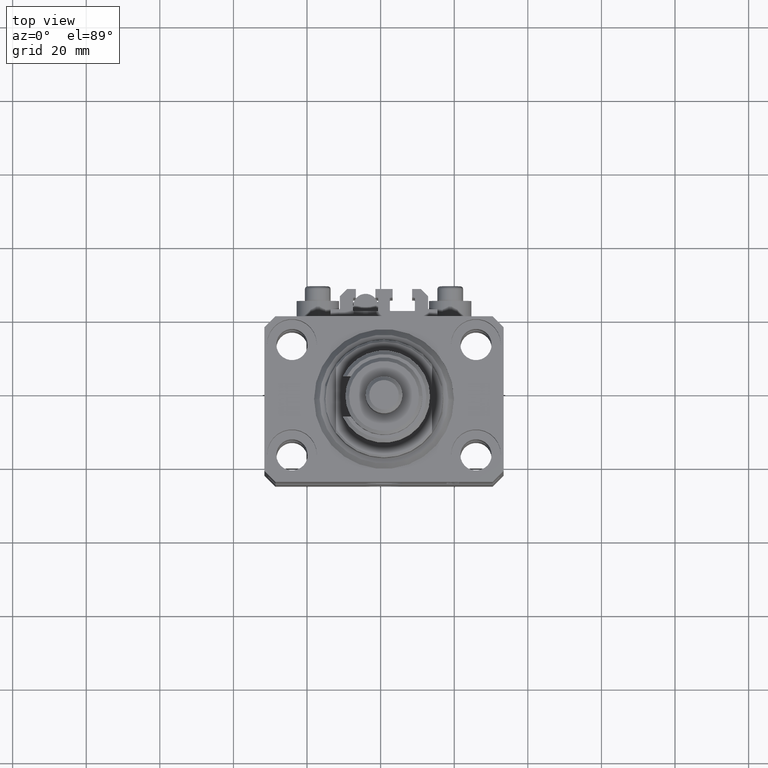
[diagram: clean part render]
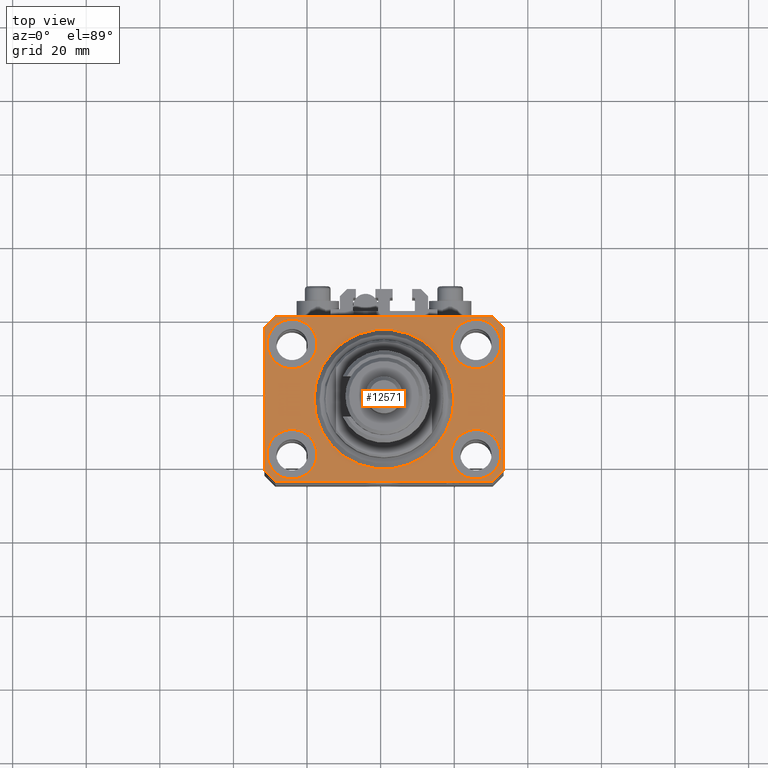
[diagram: same view with one face highlighted and labeled with its STEP entity id]
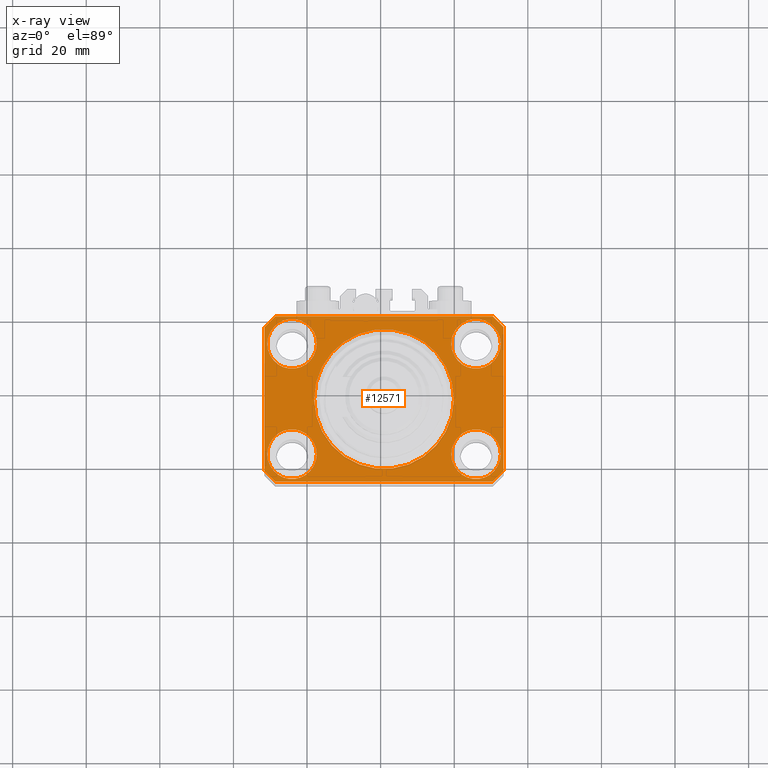
[diagram: x-ray of the same camera — body ghosted, the highlighted face saturated]
A machine part, top view. The second image highlights one B-rep face of the part: STEP entity #12571.
The next image is the same camera in x-ray: the body ghosted, the highlighted face saturated — about 0% of this face is hidden behind the body in this view.
In plain terms, the highlighted planar face has unit normal (0, 0, 1).
Its self-contained STEP definition (entity closure, byte-faithful):
#194 = CIRCLE ( 'NONE', #35042, 6.750000000041541881 ) ;
#569 = EDGE_CURVE ( 'NONE', #16544, #2751, #38163, .T. ) ;
#1836 = DIRECTION ( 'NONE',  ( 0.000000000000000000, 0.000000000000000000, 1.000000000000000000 ) ) ;
#2275 = EDGE_CURVE ( 'NONE', #26598, #32212, #33383, .T. ) ;
#2467 = CARTESIAN_POINT ( 'NONE',  ( 0.000000000000000000, 0.000000000000000000, 0.000000000000000000 ) ) ;
#2522 = ORIENTED_EDGE ( 'NONE', *, *, #25616, .F. ) ;
#2751 = VERTEX_POINT ( 'NONE', #49647 ) ;
#2944 = FACE_BOUND ( 'NONE', #36284, .T. ) ;
#3092 = CARTESIAN_POINT ( 'NONE',  ( -32.49999999999650413, -19.49999999999949907, 0.000000000000000000 ) ) ;
#3091 = CIRCLE ( 'NONE', #43691, 6.749999999958452790 ) ;
#3118 = EDGE_CURVE ( 'NONE', #32307, #19459, #24037, .T. ) ;
#3205 = FACE_BOUND ( 'NONE', #35027, .T. ) ;
#3467 = CARTESIAN_POINT ( 'NONE',  ( -25.00000000000000355, -15.00000000000000000, 0.000000000000000000 ) ) ;
#4167 = EDGE_CURVE ( 'NONE', #32212, #18233, #38654, .T. ) ;
#4303 = DIRECTION ( 'NONE',  ( 0.7071067811865474617, -0.7071067811865474617, 0.000000000000000000 ) ) ;
#4331 = CIRCLE ( 'NONE', #8486, 6.749999999958452790 ) ;
#4628 = ORIENTED_EDGE ( 'NONE', *, *, #39814, .F. ) ;
#4790 = ORIENTED_EDGE ( 'NONE', *, *, #569, .F. ) ;
#4952 = CARTESIAN_POINT ( 'NONE',  ( 18.25000000002253842, -15.00000000000000000, 0.000000000000000000 ) ) ;
#6032 = CARTESIAN_POINT ( 'NONE',  ( 32.49999999999651124, -19.49999999999949196, 0.000000000000000000 ) ) ;
#6315 = DIRECTION ( 'NONE',  ( 1.000000000000000000, 0.000000000000000000, 0.000000000000000000 ) ) ;
#6450 = DIRECTION ( 'NONE',  ( 0.000000000000000000, 0.000000000000000000, 1.000000000000000000 ) ) ;
#6818 = LINE ( 'NONE', #33811, #38774 ) ;
#7212 = DIRECTION ( 'NONE',  ( 1.000000000000000000, 0.000000000000000000, 0.000000000000000000 ) ) ;
#7637 = VECTOR ( 'NONE', #29090, 1000.000000000000000 ) ;
#7990 = AXIS2_PLACEMENT_3D ( 'NONE', #33427, #13739, #14256 ) ;
#8109 = EDGE_CURVE ( 'NONE', #49520, #12028, #13534, .T. ) ;
#8311 = AXIS2_PLACEMENT_3D ( 'NONE', #28086, #1836, #21069 ) ;
#8471 = CARTESIAN_POINT ( 'NONE',  ( 29.49999999999650413, -22.49999999999949196, 0.000000000000000000 ) ) ;
#8486 = AXIS2_PLACEMENT_3D ( 'NONE', #20178, #39386, #7212 ) ;
#8759 = DIRECTION ( 'NONE',  ( 0.000000000000000000, -1.000000000000000000, 0.000000000000000000 ) ) ;
#9262 = VERTEX_POINT ( 'NONE', #44660 ) ;
#9370 = AXIS2_PLACEMENT_3D ( 'NONE', #26039, #10742, #6315 ) ;
#9467 = ORIENTED_EDGE ( 'NONE', *, *, #3118, .F. ) ;
#10308 = ORIENTED_EDGE ( 'NONE', *, *, #4167, .T. ) ;
#10440 = AXIS2_PLACEMENT_3D ( 'NONE', #2467, #42172, #30240 ) ;
#10523 = VERTEX_POINT ( 'NONE', #48299 ) ;
#10742 = DIRECTION ( 'NONE',  ( 0.000000000000000000, 0.000000000000000000, 1.000000000000000000 ) ) ;
#11256 = DIRECTION ( 'NONE',  ( 1.000000000000000000, 0.000000000000000000, -0.000000000000000000 ) ) ;
#11292 = EDGE_LOOP ( 'NONE', ( #32142, #17770 ) ) ;
#11808 = DIRECTION ( 'NONE',  ( 0.000000000000000000, 0.000000000000000000, 1.000000000000000000 ) ) ;
#12028 = VERTEX_POINT ( 'NONE', #18914 ) ;
#12064 = CARTESIAN_POINT ( 'NONE',  ( -25.00000000000000355, -15.00000000000000000, 0.000000000000000000 ) ) ;
#12124 = ORIENTED_EDGE ( 'NONE', *, *, #40092, .T. ) ;
#12525 = VERTEX_POINT ( 'NONE', #46268 ) ;
#12571 = ADVANCED_FACE ( 'NONE', ( #35382, #3205, #46782, #38505, #2944, #23191 ), #43161, .T. ) ;
#12590 = EDGE_CURVE ( 'NONE', #12525, #10523, #194, .T. ) ;
#13534 = LINE ( 'NONE', #24685, #7637 ) ;
#13739 = DIRECTION ( 'NONE',  ( 0.000000000000000000, 0.000000000000000000, 1.000000000000000000 ) ) ;
#14256 = DIRECTION ( 'NONE',  ( 1.000000000000000000, 0.000000000000000000, 0.000000000000000000 ) ) ;
#14307 = DIRECTION ( 'NONE',  ( -0.7071067811865352493, 0.7071067811865597852, 0.000000000000000000 ) ) ;
#14532 = ORIENTED_EDGE ( 'NONE', *, *, #39940, .T. ) ;
#15070 = DIRECTION ( 'NONE',  ( -0.7071067811865474617, -0.7071067811865474617, 0.000000000000000000 ) ) ;
#15197 = CARTESIAN_POINT ( 'NONE',  ( 24.99999999999999645, 15.00000000000000888, 0.000000000000000000 ) ) ;
#15430 = AXIS2_PLACEMENT_3D ( 'NONE', #34124, #42681, #49673 ) ;
#15989 = CARTESIAN_POINT ( 'NONE',  ( -19.00000000000000000, 2.326828918379970970E-15, 0.000000000000000000 ) ) ;
#16544 = VERTEX_POINT ( 'NONE', #15989 ) ;
#16716 = ORIENTED_EDGE ( 'NONE', *, *, #46035, .T. ) ;
#17030 = VERTEX_POINT ( 'NONE', #27020 ) ;
#17770 = ORIENTED_EDGE ( 'NONE', *, *, #20245, .F. ) ;
#17987 = DIRECTION ( 'NONE',  ( 1.334402673828349134E-14, 1.000000000000000000, 0.000000000000000000 ) ) ;
#18233 = VERTEX_POINT ( 'NONE', #38127 ) ;
#18796 = CARTESIAN_POINT ( 'NONE',  ( 0.000000000000000000, 0.000000000000000000, 0.000000000000000000 ) ) ;
#18914 = CARTESIAN_POINT ( 'NONE',  ( 32.49999999999651124, -19.49999999999949196, 0.000000000000000000 ) ) ;
#19459 = VERTEX_POINT ( 'NONE', #24099 ) ;
#19597 = DIRECTION ( 'NONE',  ( 1.000000000000000000, 0.000000000000000000, 0.000000000000000000 ) ) ;
#20178 = CARTESIAN_POINT ( 'NONE',  ( 24.99999999999999645, 15.00000000000000888, 0.000000000000000000 ) ) ;
#20245 = EDGE_CURVE ( 'NONE', #47112, #9262, #30371, .T. ) ;
#20288 = ORIENTED_EDGE ( 'NONE', *, *, #8109, .T. ) ;
#20327 = EDGE_LOOP ( 'NONE', ( #33014, #34455 ) ) ;
#21069 = DIRECTION ( 'NONE',  ( 1.000000000000000000, 0.000000000000000000, 0.000000000000000000 ) ) ;
#21294 = CARTESIAN_POINT ( 'NONE',  ( 29.49999999999707967, 22.49999999999951328, 0.000000000000000000 ) ) ;
#21871 = LINE ( 'NONE', #6032, #40515 ) ;
#22625 = AXIS2_PLACEMENT_3D ( 'NONE', #18796, #26564, #11256 ) ;
#23191 = FACE_OUTER_BOUND ( 'NONE', #33460, .T. ) ;
#23593 = ORIENTED_EDGE ( 'NONE', *, *, #28852, .F. ) ;
#24037 = CIRCLE ( 'NONE', #43121, 6.749999999977465137 ) ;
#24099 = CARTESIAN_POINT ( 'NONE',  ( 31.74999999997746869, -15.00000000000000000, 0.000000000000000000 ) ) ;
#24159 = EDGE_LOOP ( 'NONE', ( #23593, #2522 ) ) ;
#24685 = CARTESIAN_POINT ( 'NONE',  ( 29.49999999999650413, -22.49999999999949196, 0.000000000000000000 ) ) ;
#25616 = EDGE_CURVE ( 'NONE', #17030, #29189, #3091, .T. ) ;
#26039 = CARTESIAN_POINT ( 'NONE',  ( -25.00000000000000355, 15.00000000000000000, 0.000000000000000000 ) ) ;
#26128 = CIRCLE ( 'NONE', #44393, 6.750000000041541881 ) ;
#26279 = VECTOR ( 'NONE', #49682, 1000.000000000000000 ) ;
#26564 = DIRECTION ( 'NONE',  ( 0.000000000000000000, 0.000000000000000000, 1.000000000000000000 ) ) ;
#26598 = VERTEX_POINT ( 'NONE', #40081 ) ;
#26632 = EDGE_CURVE ( 'NONE', #18233, #49520, #6818, .T. ) ;
#26957 = DIRECTION ( 'NONE',  ( 1.000000000000000000, 0.000000000000000000, 0.000000000000000000 ) ) ;
#27020 = CARTESIAN_POINT ( 'NONE',  ( 18.25000000004154543, 15.00000000000000888, 0.000000000000000000 ) ) ;
#27822 = VECTOR ( 'NONE', #14307, 1000.000000000000000 ) ;
#28086 = CARTESIAN_POINT ( 'NONE',  ( 0.000000000000000000, 0.000000000000000000, 0.000000000000000000 ) ) ;
#28445 = CIRCLE ( 'NONE', #9370, 6.750000000022533087 ) ;
#28852 = EDGE_CURVE ( 'NONE', #29189, #17030, #4331, .T. ) ;
#29090 = DIRECTION ( 'NONE',  ( 0.7071067811865483499, 0.7071067811865466846, 0.000000000000000000 ) ) ;
#29189 = VERTEX_POINT ( 'NONE', #42187 ) ;
#29408 = CARTESIAN_POINT ( 'NONE',  ( 32.49999999999702993, 19.49999999999945999, 0.000000000000000000 ) ) ;
#29730 = CARTESIAN_POINT ( 'NONE',  ( 29.49999999999707967, 22.49999999999951328, 0.000000000000000000 ) ) ;
#30181 = EDGE_CURVE ( 'NONE', #9262, #47112, #28445, .T. ) ;
#30240 = DIRECTION ( 'NONE',  ( 1.000000000000000000, 0.000000000000000000, 0.000000000000000000 ) ) ;
#30371 = CIRCLE ( 'NONE', #7990, 6.750000000022533087 ) ;
#30724 = DIRECTION ( 'NONE',  ( 0.000000000000000000, 0.000000000000000000, 1.000000000000000000 ) ) ;
#31023 = DIRECTION ( 'NONE',  ( 0.000000000000000000, 0.000000000000000000, 1.000000000000000000 ) ) ;
#31116 = CARTESIAN_POINT ( 'NONE',  ( 25.00000000000000355, -15.00000000000000000, 0.000000000000000000 ) ) ;
#32142 = ORIENTED_EDGE ( 'NONE', *, *, #30181, .F. ) ;
#32212 = VERTEX_POINT ( 'NONE', #39234 ) ;
#32289 = LINE ( 'NONE', #37190, #27822 ) ;
#32307 = VERTEX_POINT ( 'NONE', #4952 ) ;
#33014 = ORIENTED_EDGE ( 'NONE', *, *, #39841, .F. ) ;
#33383 = LINE ( 'NONE', #40415, #35462 ) ;
#33427 = CARTESIAN_POINT ( 'NONE',  ( -25.00000000000000355, 15.00000000000000000, 0.000000000000000000 ) ) ;
#33460 = EDGE_LOOP ( 'NONE', ( #46862, #12124, #38276, #10308, #49981, #20288, #16716, #14532 ) ) ;
#33542 = ORIENTED_EDGE ( 'NONE', *, *, #40615, .F. ) ;
#33811 = CARTESIAN_POINT ( 'NONE',  ( -29.49999999999650413, -22.49999999999949907, 0.000000000000000000 ) ) ;
#34124 = CARTESIAN_POINT ( 'NONE',  ( 25.00000000000000355, -15.00000000000000000, 0.000000000000000000 ) ) ;
#34455 = ORIENTED_EDGE ( 'NONE', *, *, #12590, .F. ) ;
#34777 = LINE ( 'NONE', #50577, #43588 ) ;
#35027 = EDGE_LOOP ( 'NONE', ( #4628, #9467 ) ) ;
#35042 = AXIS2_PLACEMENT_3D ( 'NONE', #3467, #30724, #50923 ) ;
#35382 = FACE_BOUND ( 'NONE', #20327, .T. ) ;
#35462 = VECTOR ( 'NONE', #8759, 1000.000000000000000 ) ;
#35711 = VECTOR ( 'NONE', #4303, 1000.000000000000114 ) ;
#36284 = EDGE_LOOP ( 'NONE', ( #33542, #4790 ) ) ;
#37190 = CARTESIAN_POINT ( 'NONE',  ( 32.49999999999702993, 19.49999999999945999, 0.000000000000000000 ) ) ;
#37259 = VERTEX_POINT ( 'NONE', #37924 ) ;
#37924 = CARTESIAN_POINT ( 'NONE',  ( -29.49999999999650413, 22.49999999999949907, 0.000000000000000000 ) ) ;
#38127 = CARTESIAN_POINT ( 'NONE',  ( -29.49999999999650413, -22.49999999999949907, 0.000000000000000000 ) ) ;
#38163 = CIRCLE ( 'NONE', #8311, 19.00000000000000000 ) ;
#38276 = ORIENTED_EDGE ( 'NONE', *, *, #2275, .T. ) ;
#38478 = CARTESIAN_POINT ( 'NONE',  ( -31.75000000002253842, 15.00000000000000000, 0.000000000000000000 ) ) ;
#38505 = FACE_BOUND ( 'NONE', #11292, .T. ) ;
#38654 = LINE ( 'NONE', #3092, #35711 ) ;
#38774 = VECTOR ( 'NONE', #41863, 1000.000000000000000 ) ;
#39234 = CARTESIAN_POINT ( 'NONE',  ( -32.49999999999650413, -19.49999999999949907, 0.000000000000000000 ) ) ;
#39386 = DIRECTION ( 'NONE',  ( 0.000000000000000000, 0.000000000000000000, 1.000000000000000000 ) ) ;
#39814 = EDGE_CURVE ( 'NONE', #19459, #32307, #48500, .T. ) ;
#39841 = EDGE_CURVE ( 'NONE', #10523, #12525, #26128, .T. ) ;
#39940 = EDGE_CURVE ( 'NONE', #40897, #45459, #32289, .T. ) ;
#40081 = CARTESIAN_POINT ( 'NONE',  ( -32.49999999999650413, 19.49999999999949907, 0.000000000000000000 ) ) ;
#40092 = EDGE_CURVE ( 'NONE', #37259, #26598, #34777, .T. ) ;
#40415 = CARTESIAN_POINT ( 'NONE',  ( -32.49999999999650413, 19.49999999999949907, 0.000000000000000000 ) ) ;
#40515 = VECTOR ( 'NONE', #17987, 1000.000000000000000 ) ;
#40615 = EDGE_CURVE ( 'NONE', #2751, #16544, #51045, .T. ) ;
#40897 = VERTEX_POINT ( 'NONE', #29408 ) ;
#41410 = LINE ( 'NONE', #29730, #26279 ) ;
#41863 = DIRECTION ( 'NONE',  ( 1.000000000000000000, 1.176083712526788232E-16, 0.000000000000000000 ) ) ;
#42172 = DIRECTION ( 'NONE',  ( 0.000000000000000000, 0.000000000000000000, 1.000000000000000000 ) ) ;
#42187 = CARTESIAN_POINT ( 'NONE',  ( 31.74999999995845101, 15.00000000000000888, 0.000000000000000000 ) ) ;
#42681 = DIRECTION ( 'NONE',  ( 0.000000000000000000, 0.000000000000000000, 1.000000000000000000 ) ) ;
#43121 = AXIS2_PLACEMENT_3D ( 'NONE', #31116, #6450, #26957 ) ;
#43161 = PLANE ( 'NONE',  #22625 ) ;
#43379 = EDGE_CURVE ( 'NONE', #45459, #37259, #41410, .T. ) ;
#43588 = VECTOR ( 'NONE', #15070, 1000.000000000000114 ) ;
#43691 = AXIS2_PLACEMENT_3D ( 'NONE', #15197, #31023, #46820 ) ;
#44393 = AXIS2_PLACEMENT_3D ( 'NONE', #12064, #11808, #19597 ) ;
#44660 = CARTESIAN_POINT ( 'NONE',  ( -18.24999999997747224, 15.00000000000000000, 0.000000000000000000 ) ) ;
#45459 = VERTEX_POINT ( 'NONE', #21294 ) ;
#46035 = EDGE_CURVE ( 'NONE', #12028, #40897, #21871, .T. ) ;
#46268 = CARTESIAN_POINT ( 'NONE',  ( -31.75000000004154899, -15.00000000000000000, 0.000000000000000000 ) ) ;
#46782 = FACE_BOUND ( 'NONE', #24159, .T. ) ;
#46820 = DIRECTION ( 'NONE',  ( 1.000000000000000000, 0.000000000000000000, 0.000000000000000000 ) ) ;
#46862 = ORIENTED_EDGE ( 'NONE', *, *, #43379, .T. ) ;
#47112 = VERTEX_POINT ( 'NONE', #38478 ) ;
#48299 = CARTESIAN_POINT ( 'NONE',  ( -18.24999999995846167, -15.00000000000000000, 0.000000000000000000 ) ) ;
#48500 = CIRCLE ( 'NONE', #15430, 6.749999999977465137 ) ;
#49520 = VERTEX_POINT ( 'NONE', #8471 ) ;
#49647 = CARTESIAN_POINT ( 'NONE',  ( 19.00000000000000000, 0.000000000000000000, 0.000000000000000000 ) ) ;
#49673 = DIRECTION ( 'NONE',  ( 1.000000000000000000, 0.000000000000000000, 0.000000000000000000 ) ) ;
#49682 = DIRECTION ( 'NONE',  ( -1.000000000000000000, -2.352167425053553784E-16, 0.000000000000000000 ) ) ;
#49981 = ORIENTED_EDGE ( 'NONE', *, *, #26632, .T. ) ;
#50577 = CARTESIAN_POINT ( 'NONE',  ( -29.49999999999650413, 22.49999999999949907, 0.000000000000000000 ) ) ;
#50923 = DIRECTION ( 'NONE',  ( 1.000000000000000000, 0.000000000000000000, 0.000000000000000000 ) ) ;
#51045 = CIRCLE ( 'NONE', #10440, 19.00000000000000000 ) ;